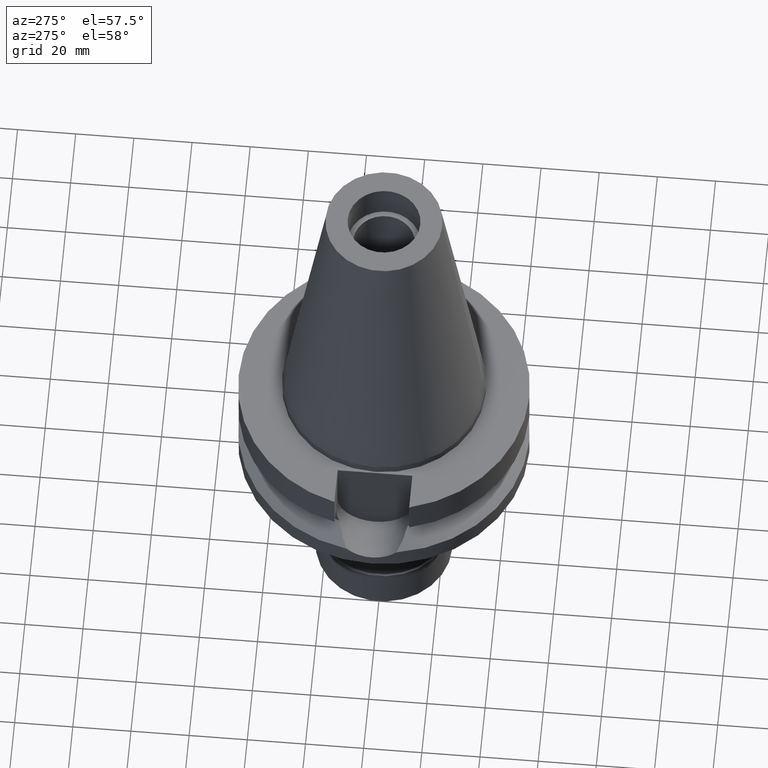
[diagram: clean part render]
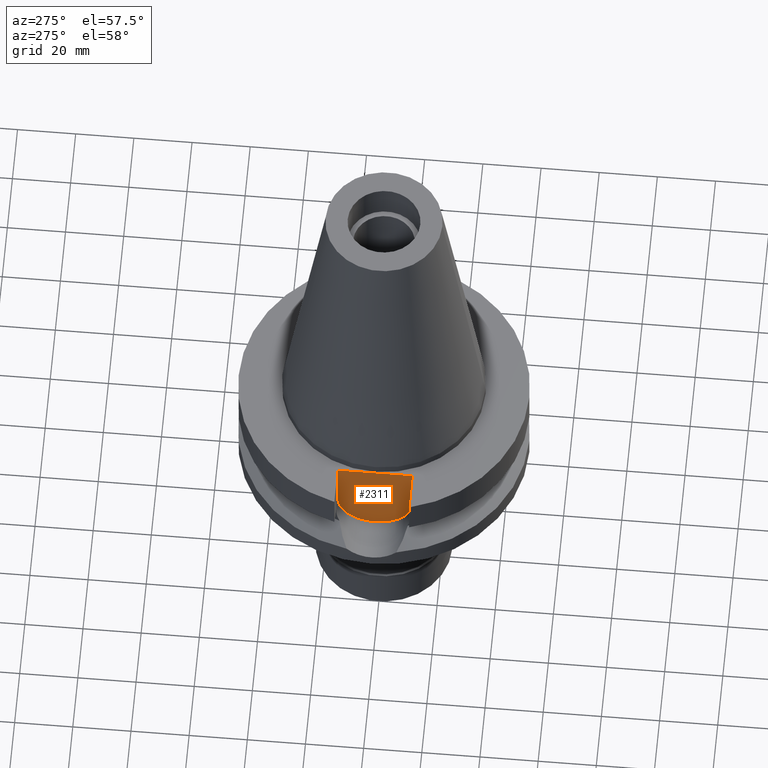
[diagram: same view with one face highlighted and labeled with its STEP entity id]
A machine part, auxiliary view. The second image highlights one B-rep face of the part: STEP entity #2311.
In plain terms, the highlighted planar face has unit normal (-1, 0, 0).
Its self-contained STEP definition (entity closure, byte-faithful):
#935=DIRECTION('',(0.E0,1.E0,0.E0));
#936=VECTOR('',#935,2.57E1);
#937=CARTESIAN_POINT('',(-3.54E1,-1.285E1,-3.E0));
#938=LINE('',#937,#936);
#1011=DIRECTION('',(0.E0,0.E0,-1.E0));
#1012=VECTOR('',#1011,1.815E1);
#1013=CARTESIAN_POINT('',(-3.54E1,-1.285E1,-3.E0));
#1014=LINE('',#1013,#1012);
#1018=CARTESIAN_POINT('',(-3.54E1,1.497743035357E-14,-2.115E1));
#1019=DIRECTION('',(1.E0,0.E0,0.E0));
#1020=DIRECTION('',(0.E0,-1.E0,1.133550667944E-14));
#1021=AXIS2_PLACEMENT_3D('',#1018,#1019,#1020);
#1026=CARTESIAN_POINT('',(-3.54E1,1.497743035357E-14,-2.115E1));
#1027=DIRECTION('',(1.E0,0.E0,0.E0));
#1028=DIRECTION('',(0.E0,0.E0,-1.E0));
#1029=AXIS2_PLACEMENT_3D('',#1026,#1027,#1028);
#1034=DIRECTION('',(0.E0,0.E0,1.E0));
#1035=VECTOR('',#1034,1.815E1);
#1036=CARTESIAN_POINT('',(-3.54E1,1.285E1,-2.115E1));
#1037=LINE('',#1036,#1035);
#1411=CARTESIAN_POINT('',(-3.54E1,1.285E1,-2.115E1));
#1412=VERTEX_POINT('',#1411);
#1413=CARTESIAN_POINT('',(-3.54E1,1.576426592202E-14,-3.4E1));
#1414=VERTEX_POINT('',#1413);
#1415=CARTESIAN_POINT('',(-3.54E1,-1.285E1,-2.115E1));
#1416=VERTEX_POINT('',#1415);
#1431=CARTESIAN_POINT('',(-3.54E1,-1.285E1,-3.E0));
#1432=VERTEX_POINT('',#1431);
#1437=CARTESIAN_POINT('',(-3.54E1,1.285E1,-3.E0));
#1438=VERTEX_POINT('',#1437);
#2297=CARTESIAN_POINT('',(-3.54E1,2.015768631397E-14,0.E0));
#2298=DIRECTION('',(-1.E0,0.E0,0.E0));
#2299=DIRECTION('',(0.E0,0.E0,-1.E0));
#2300=AXIS2_PLACEMENT_3D('',#2297,#2298,#2299);
#2301=PLANE('',#2300);
#2302=ORIENTED_EDGE('',*,*,#2270,.F.);
#2304=ORIENTED_EDGE('',*,*,#2303,.T.);
#2305=ORIENTED_EDGE('',*,*,#2172,.T.);
#2306=ORIENTED_EDGE('',*,*,#2170,.T.);
#2308=ORIENTED_EDGE('',*,*,#2307,.T.);
#2309=EDGE_LOOP('',(#2302,#2304,#2305,#2306,#2308));
#2310=FACE_OUTER_BOUND('',#2309,.F.);
#1022=CIRCLE('',#1021,1.285E1);
#1030=CIRCLE('',#1029,1.285E1);
#2170=EDGE_CURVE('',#1414,#1412,#1030,.T.);
#2172=EDGE_CURVE('',#1416,#1414,#1022,.T.);
#2270=EDGE_CURVE('',#1432,#1438,#938,.T.);
#2303=EDGE_CURVE('',#1432,#1416,#1014,.T.);
#2307=EDGE_CURVE('',#1412,#1438,#1037,.T.);
#2311=ADVANCED_FACE('',(#2310),#2301,.T.);